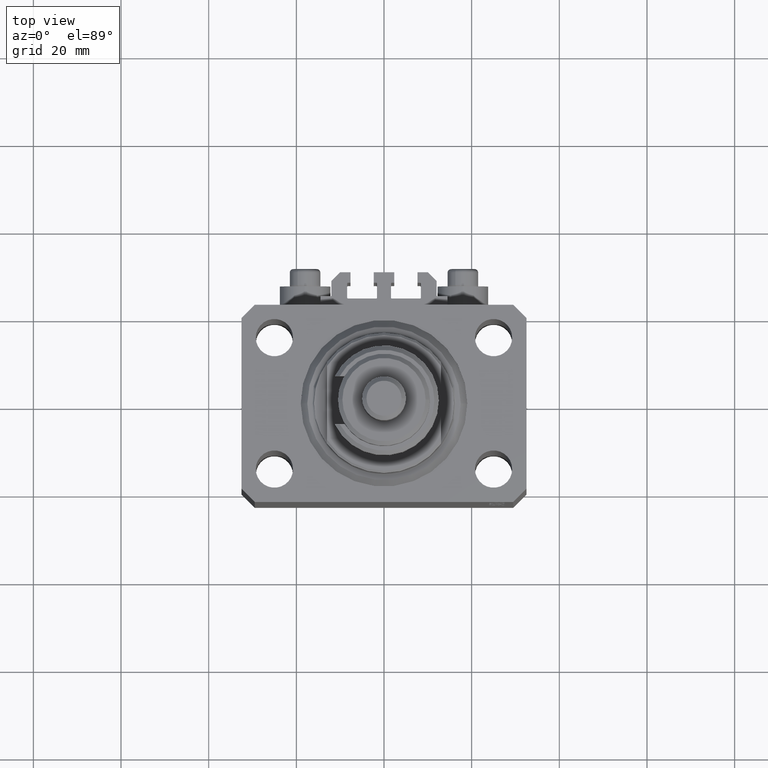
[diagram: clean part render]
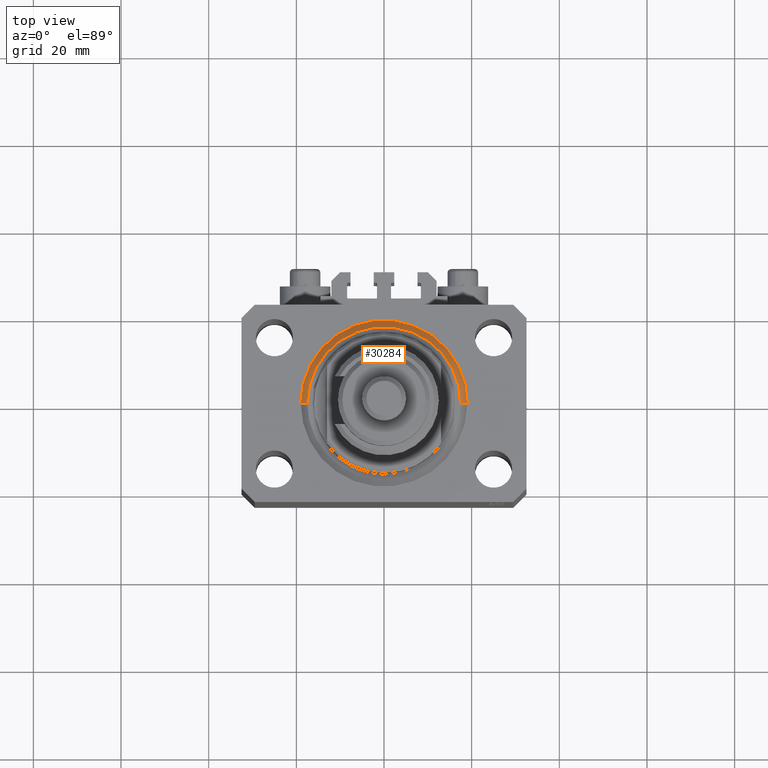
[diagram: same view with one face highlighted and labeled with its STEP entity id]
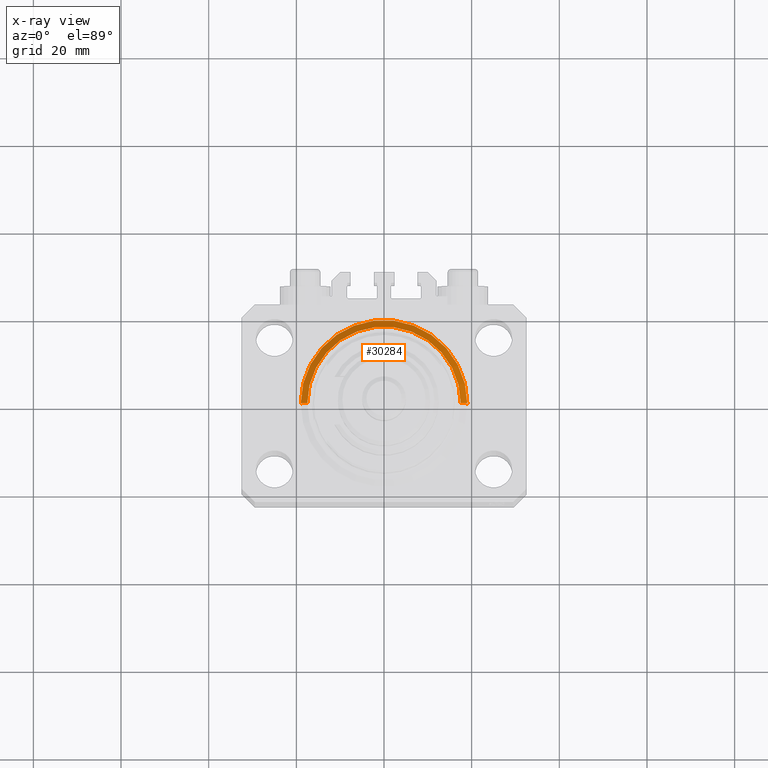
[diagram: x-ray of the same camera — body ghosted, the highlighted face saturated]
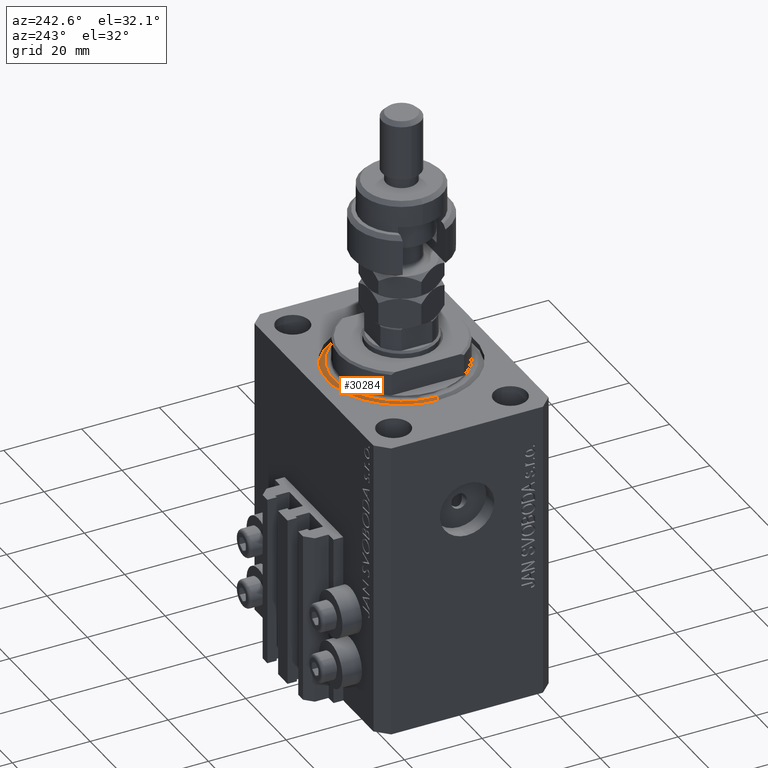
[diagram: same view with one face highlighted and labeled with its STEP entity id]
A machine part, top view. The second image highlights one B-rep face of the part: STEP entity #30284.
The next image is the same camera in x-ray: the body ghosted, the highlighted face saturated — about 0% of this face is hidden behind the body in this view.
A second angle (auxiliary view) of the same face is appended — the face is thin or edge-on in the first view.
In plain terms, the highlighted conical surface has half-angle 45 deg.
Its self-contained STEP definition (entity closure, byte-faithful):
#43 = VERTEX_POINT ( 'NONE', #15700 ) ;
#156 = AXIS2_PLACEMENT_3D ( 'NONE', #31620, #39007, #390 ) ;
#390 = DIRECTION ( 'NONE',  ( 1.000000000000000000, 0.000000000000000000, 0.000000000000000000 ) ) ;
#1209 = EDGE_CURVE ( 'NONE', #25407, #44572, #10027, .T. ) ;
#3898 = CARTESIAN_POINT ( 'NONE',  ( -19.00000000000000000, 0.000000000000000000, 1.500000000000001332 ) ) ;
#5254 = VECTOR ( 'NONE', #49944, 1000.000000000000000 ) ;
#5689 = EDGE_CURVE ( 'NONE', #25407, #48741, #14060, .T. ) ;
#6401 = AXIS2_PLACEMENT_3D ( 'NONE', #37641, #37379, #45266 ) ;
#8043 = CONICAL_SURFACE ( 'NONE', #6401, 19.00000000000000000, 0.7853981633974492782 ) ;
#8682 = CARTESIAN_POINT ( 'NONE',  ( 0.000000000000000000, 0.000000000000000000, 0.000000000000000000 ) ) ;
#9197 = EDGE_LOOP ( 'NONE', ( #33491, #12187, #49268, #12494 ) ) ;
#10027 = LINE ( 'NONE', #39996, #35843 ) ;
#12187 = ORIENTED_EDGE ( 'NONE', *, *, #1209, .T. ) ;
#12494 = ORIENTED_EDGE ( 'NONE', *, *, #16057, .F. ) ;
#14060 = CIRCLE ( 'NONE', #28672, 17.49999999999999645 ) ;
#15366 = CARTESIAN_POINT ( 'NONE',  ( 19.00000000000000000, 0.000000000000000000, 1.500000000000001332 ) ) ;
#15700 = CARTESIAN_POINT ( 'NONE',  ( 19.00000000000000000, 2.326828918379970970E-15, 1.500000000000001332 ) ) ;
#16057 = EDGE_CURVE ( 'NONE', #48741, #43, #26811, .T. ) ;
#17379 = DIRECTION ( 'NONE',  ( -0.7071067811865483499, 8.659560562354942719E-17, 0.7071067811865467956 ) ) ;
#22068 = CIRCLE ( 'NONE', #156, 19.00000000000000000 ) ;
#25407 = VERTEX_POINT ( 'NONE', #42764 ) ;
#26811 = LINE ( 'NONE', #15366, #5254 ) ;
#28672 = AXIS2_PLACEMENT_3D ( 'NONE', #8682, #36089, #40407 ) ;
#30284 = ADVANCED_FACE ( 'NONE', ( #30769 ), #8043, .T. ) ;
#30769 = FACE_OUTER_BOUND ( 'NONE', #9197, .T. ) ;
#31620 = CARTESIAN_POINT ( 'NONE',  ( 0.000000000000000000, 0.000000000000000000, 1.500000000000001332 ) ) ;
#33491 = ORIENTED_EDGE ( 'NONE', *, *, #5689, .F. ) ;
#35843 = VECTOR ( 'NONE', #17379, 1000.000000000000000 ) ;
#36089 = DIRECTION ( 'NONE',  ( -0.000000000000000000, -0.000000000000000000, -1.000000000000000000 ) ) ;
#36375 = EDGE_CURVE ( 'NONE', #43, #44572, #22068, .T. ) ;
#37338 = CARTESIAN_POINT ( 'NONE',  ( 17.49999999999999645, 0.000000000000000000, 0.000000000000000000 ) ) ;
#37379 = DIRECTION ( 'NONE',  ( -0.000000000000000000, -0.000000000000000000, 1.000000000000000000 ) ) ;
#37641 = CARTESIAN_POINT ( 'NONE',  ( 0.000000000000000000, 0.000000000000000000, 1.500000000000001332 ) ) ;
#39007 = DIRECTION ( 'NONE',  ( -0.000000000000000000, -0.000000000000000000, 1.000000000000000000 ) ) ;
#39996 = CARTESIAN_POINT ( 'NONE',  ( -19.00000000000000000, 2.326828918379970970E-15, 1.500000000000001332 ) ) ;
#40407 = DIRECTION ( 'NONE',  ( 1.000000000000000000, 0.000000000000000000, 0.000000000000000000 ) ) ;
#42764 = CARTESIAN_POINT ( 'NONE',  ( -17.49999999999999645, 2.234980408443919215E-15, 0.000000000000000000 ) ) ;
#44572 = VERTEX_POINT ( 'NONE', #3898 ) ;
#45266 = DIRECTION ( 'NONE',  ( 1.000000000000000000, 0.000000000000000000, 0.000000000000000000 ) ) ;
#48741 = VERTEX_POINT ( 'NONE', #37338 ) ;
#49268 = ORIENTED_EDGE ( 'NONE', *, *, #36375, .F. ) ;
#49944 = DIRECTION ( 'NONE',  ( 0.7071067811865483499, 0.000000000000000000, 0.7071067811865467956 ) ) ;